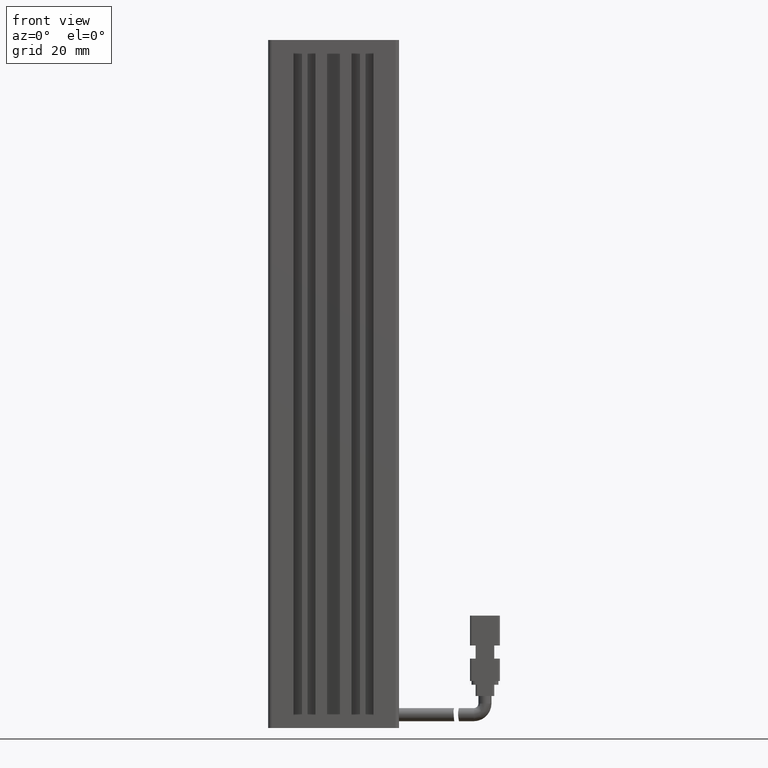
[diagram: clean part render]
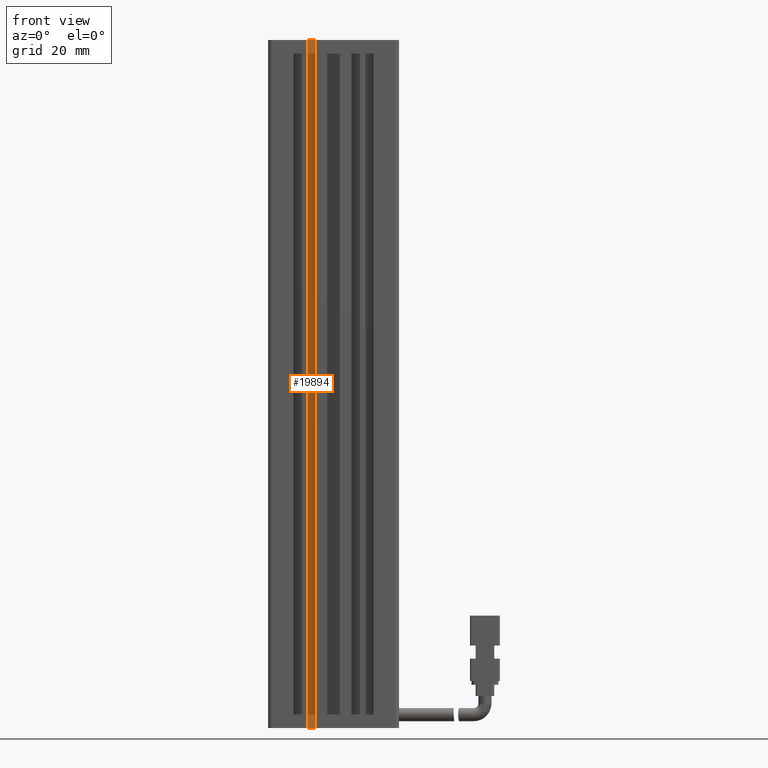
[diagram: same view with one face highlighted and labeled with its STEP entity id]
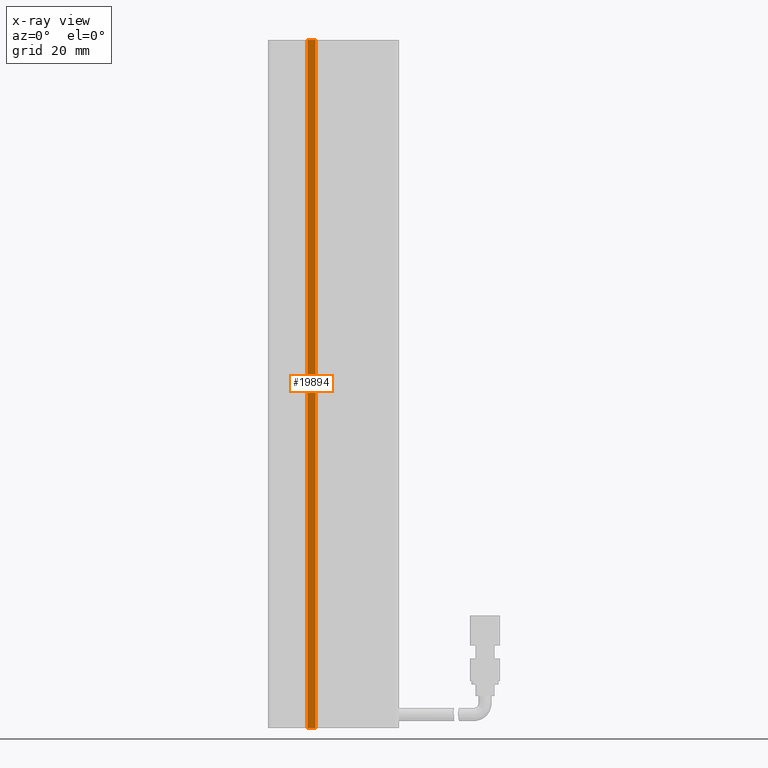
[diagram: x-ray of the same camera — body ghosted, the highlighted face saturated]
A machine part, front view. The second image highlights one B-rep face of the part: STEP entity #19894.
The next image is the same camera in x-ray: the body ghosted, the highlighted face saturated — about 0% of this face is hidden behind the body in this view.
In plain terms, the highlighted planar face has unit normal (-0, 1, 0).
Its self-contained STEP definition (entity closure, byte-faithful):
#152 = EDGE_CURVE ( 'NONE', #65130, #30557, #61945, .T. ) ;
#11242 = FACE_OUTER_BOUND ( 'NONE', #41898, .T. ) ;
#12172 = VECTOR ( 'NONE', #44885, 1000.000000000000000 ) ;
#13105 = EDGE_CURVE ( 'NONE', #59971, #65130, #29451, .T. ) ;
#14097 = LINE ( 'NONE', #20501, #12172 ) ;
#19894 = ADVANCED_FACE ( 'NONE', ( #11242 ), #29315, .F. ) ;
#20501 = CARTESIAN_POINT ( 'NONE',  ( 33.92537974683543200, 16.49073232304837000, -23.00000000000000700 ) ) ;
#20820 = CARTESIAN_POINT ( 'NONE',  ( 36.12537974683543500, 16.49073232304837000, -23.00000000000000700 ) ) ;
#21252 = LINE ( 'NONE', #74013, #25075 ) ;
#23251 = ORIENTED_EDGE ( 'NONE', *, *, #13105, .F. ) ;
#25075 = VECTOR ( 'NONE', #73751, 1000.000000000000000 ) ;
#25909 = AXIS2_PLACEMENT_3D ( 'NONE', #53647, #41491, #66181 ) ;
#29315 = PLANE ( 'NONE',  #25909 ) ;
#29451 = LINE ( 'NONE', #58259, #76006 ) ;
#30557 = VERTEX_POINT ( 'NONE', #69697 ) ;
#39805 = DIRECTION ( 'NONE',  ( -0.0000000000000000000, -0.0000000000000000000, -1.000000000000000000 ) ) ;
#40548 = CARTESIAN_POINT ( 'NONE',  ( 33.92537974683543200, 16.49073232304837000, -207.0000000000000300 ) ) ;
#41491 = DIRECTION ( 'NONE',  ( -7.885106708985485100E-016, 1.000000000000000000, 0.0000000000000000000 ) ) ;
#41898 = EDGE_LOOP ( 'NONE', ( #48695, #23251, #52676, #63468 ) ) ;
#44885 = DIRECTION ( 'NONE',  ( 0.0000000000000000000, 0.0000000000000000000, 1.000000000000000000 ) ) ;
#45725 = CARTESIAN_POINT ( 'NONE',  ( 33.92537974683543200, 16.49073232304837000, -23.00000000000000700 ) ) ;
#45775 = VECTOR ( 'NONE', #39805, 1000.000000000000000 ) ;
#48695 = ORIENTED_EDGE ( 'NONE', *, *, #152, .F. ) ;
#51264 = VERTEX_POINT ( 'NONE', #40548 ) ;
#51714 = CARTESIAN_POINT ( 'NONE',  ( 36.12537974683543500, 16.49073232304837000, -23.00000000000000700 ) ) ;
#52676 = ORIENTED_EDGE ( 'NONE', *, *, #69611, .F. ) ;
#53647 = CARTESIAN_POINT ( 'NONE',  ( 40.92537974683541800, 16.49073232304837300, -23.00000000000000700 ) ) ;
#58259 = CARTESIAN_POINT ( 'NONE',  ( 40.92537974683542500, 16.49073232304836600, -23.00000000000000700 ) ) ;
#59971 = VERTEX_POINT ( 'NONE', #45725 ) ;
#61945 = LINE ( 'NONE', #51714, #45775 ) ;
#63468 = ORIENTED_EDGE ( 'NONE', *, *, #77438, .T. ) ;
#65130 = VERTEX_POINT ( 'NONE', #20820 ) ;
#66181 = DIRECTION ( 'NONE',  ( -1.000000000000000000, -7.885106708985485100E-016, 0.0000000000000000000 ) ) ;
#69611 = EDGE_CURVE ( 'NONE', #51264, #59971, #14097, .T. ) ;
#69697 = CARTESIAN_POINT ( 'NONE',  ( 36.12537974683543500, 16.49073232304837000, -207.0000000000000300 ) ) ;
#73751 = DIRECTION ( 'NONE',  ( 1.000000000000000000, 0.0000000000000000000, 0.0000000000000000000 ) ) ;
#74013 = CARTESIAN_POINT ( 'NONE',  ( 40.92537974683542500, 16.49073232304836600, -207.0000000000000300 ) ) ;
#76006 = VECTOR ( 'NONE', #77465, 1000.000000000000000 ) ;
#77438 = EDGE_CURVE ( 'NONE', #51264, #30557, #21252, .T. ) ;
#77465 = DIRECTION ( 'NONE',  ( 1.000000000000000000, 0.0000000000000000000, 0.0000000000000000000 ) ) ;